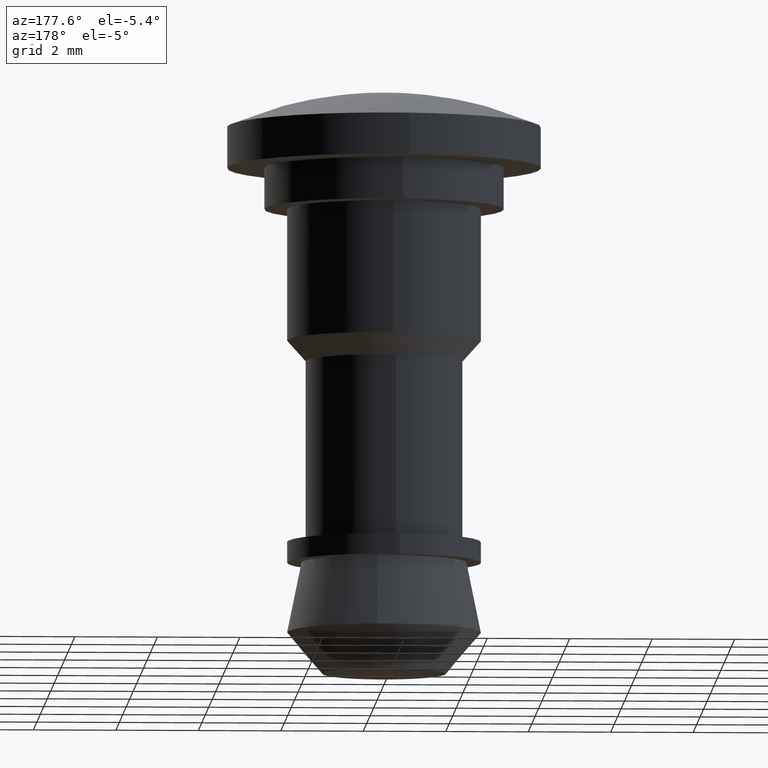
[diagram: clean part render]
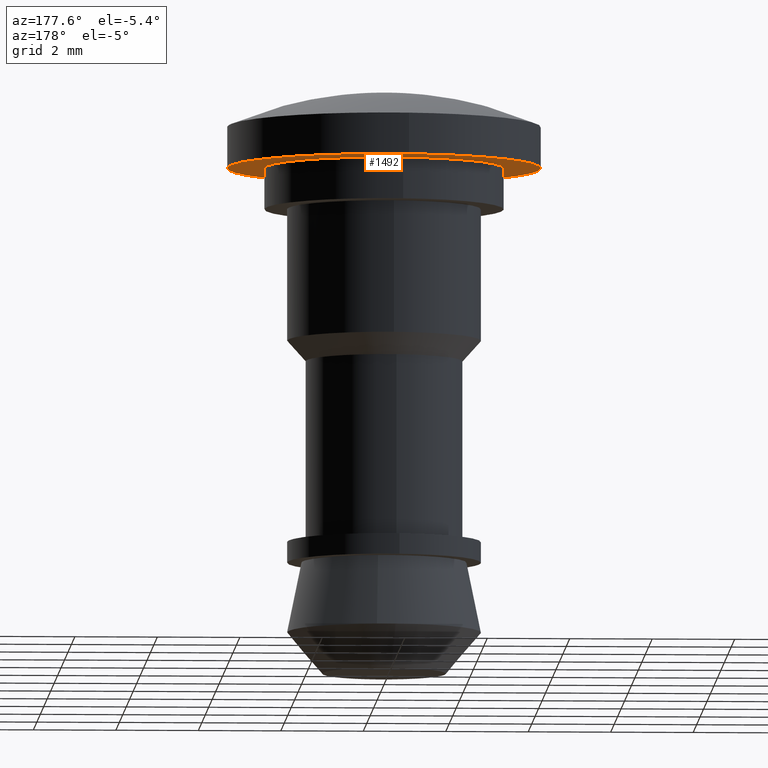
[diagram: same view with one face highlighted and labeled with its STEP entity id]
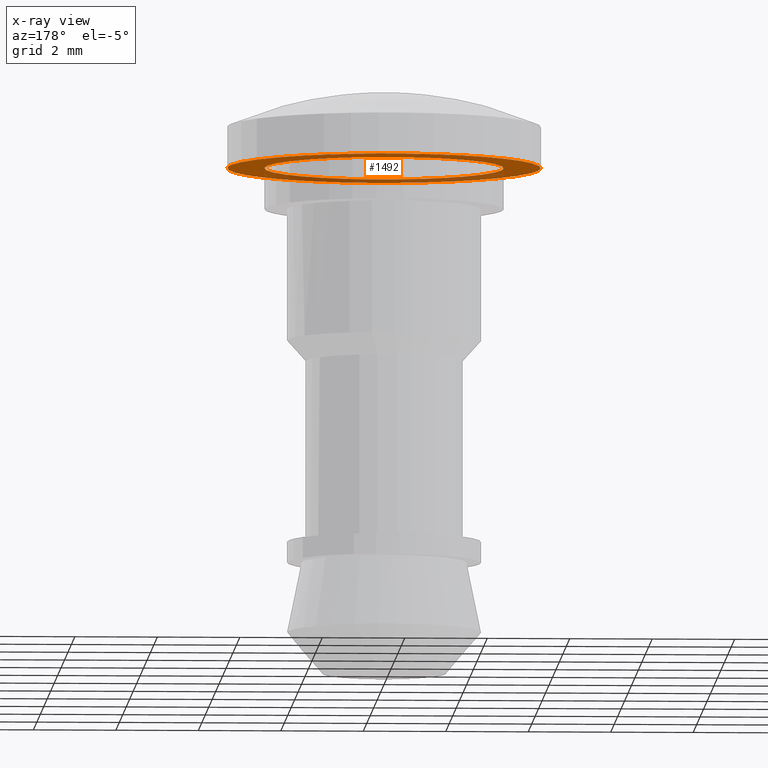
[diagram: x-ray of the same camera — body ghosted, the highlighted face saturated]
A machine part, auxiliary view. The second image highlights one B-rep face of the part: STEP entity #1492.
The next image is the same camera in x-ray: the body ghosted, the highlighted face saturated — about 33% of this face is hidden behind the body in this view.
In plain terms, the highlighted face is a freeform B-spline surface patch.
Its self-contained STEP definition (entity closure, byte-faithful):
#100=CARTESIAN_POINT('',(0.231983949135835,-3.792912264651410,1.0));
#101=VERTEX_POINT('',#100);
#107=CARTESIAN_POINT('',(3.800000000000000,0.0,1.0));
#108=VERTEX_POINT('',#107);
#109=CARTESIAN_POINT('',(3.800000000000000,0.0,1.0));
#110=CARTESIAN_POINT('',(3.799999999999999,-3.574684000537785,1.0));
#111=CARTESIAN_POINT('',(0.231983949135835,-3.792912264651410,1.0));
#119=(BOUNDED_CURVE()B_SPLINE_CURVE(2,(#109,#110,#111),.UNSPECIFIED.,.F.,.U.)B_SPLINE_CURVE_WITH_KNOTS((3,3),(0.500000000000000,0.739333007833646),.UNSPECIFIED.)CURVE()GEOMETRIC_REPRESENTATION_ITEM()RATIONAL_B_SPLINE_CURVE((1.0,0.719603939869192,0.976072139384866))REPRESENTATION_ITEM(''));
#120=EDGE_CURVE('',#108,#101,#119,.T.);
#122=CARTESIAN_POINT('',(-0.448527645857825,3.773436490905229,1.0));
#123=VERTEX_POINT('',#122);
#124=CARTESIAN_POINT('',(-0.448527645857825,3.773436490905229,1.0));
#125=CARTESIAN_POINT('',(-0.225050418829906,3.800000000000000,1.0));
#126=CARTESIAN_POINT('',(0.0,3.800000000000000,1.0));
#127=CARTESIAN_POINT('',(3.800000000000000,3.800000000000000,1.0));
#128=CARTESIAN_POINT('',(3.800000000000000,0.0,1.0));
#136=(BOUNDED_CURVE()B_SPLINE_CURVE(2,(#124,#125,#126,#127,#128),.UNSPECIFIED.,.F.,.U.)B_SPLINE_CURVE_WITH_KNOTS((3,2,3),(0.229562583058920,0.250000000000000,0.500000000000000),.UNSPECIFIED.)CURVE()GEOMETRIC_REPRESENTATION_ITEM()RATIONAL_B_SPLINE_CURVE((0.956026968897302,0.976056076671578,1.0,0.707106781186547,1.0))REPRESENTATION_ITEM(''));
#137=EDGE_CURVE('',#123,#108,#136,.T.);
#181=CARTESIAN_POINT('',(-3.800000000000000,0.0,1.0));
#182=VERTEX_POINT('',#181);
#183=CARTESIAN_POINT('',(-3.800000000000000,0.0,1.0));
#184=CARTESIAN_POINT('',(-3.800000000000001,3.375065401639243,1.0));
#185=CARTESIAN_POINT('',(-0.448527645857825,3.773436490905229,1.0));
#193=(BOUNDED_CURVE()B_SPLINE_CURVE(2,(#183,#184,#185),.UNSPECIFIED.,.F.,.U.)B_SPLINE_CURVE_WITH_KNOTS((3,3),(0.0,0.229562583058920),.UNSPECIFIED.)CURVE()GEOMETRIC_REPRESENTATION_ITEM()RATIONAL_B_SPLINE_CURVE((1.0,0.731050704514970,0.956026968897302))REPRESENTATION_ITEM(''));
#194=EDGE_CURVE('',#182,#123,#193,.T.);
#196=CARTESIAN_POINT('',(0.231983949135835,-3.792912264651410,1.0));
#197=CARTESIAN_POINT('',(0.116099998032996,-3.799999999999999,1.0));
#198=CARTESIAN_POINT('',(0.0,-3.800000000000000,1.0));
#199=CARTESIAN_POINT('',(-3.800000000000000,-3.800000000000000,1.0));
#200=CARTESIAN_POINT('',(-3.800000000000000,0.0,1.0));
#208=(BOUNDED_CURVE()B_SPLINE_CURVE(2,(#196,#197,#198,#199,#200),.UNSPECIFIED.,.F.,.U.)B_SPLINE_CURVE_WITH_KNOTS((3,2,3),(0.739333007833647,0.750000000000000,1.0),.UNSPECIFIED.)CURVE()GEOMETRIC_REPRESENTATION_ITEM()RATIONAL_B_SPLINE_CURVE((0.976072139384866,0.987502841317355,1.0,0.707106781186547,1.0))REPRESENTATION_ITEM(''));
#209=EDGE_CURVE('',#101,#182,#208,.T.);
#252=CARTESIAN_POINT('',(-0.342299040128431,2.879727655026963,0.999999999999999));
#253=VERTEX_POINT('',#252);
#254=CARTESIAN_POINT('',(2.900000000000000,0.0,1.0));
#255=VERTEX_POINT('',#254);
#256=CARTESIAN_POINT('',(-0.342299040128431,2.879727655026963,0.999999999999999));
#257=CARTESIAN_POINT('',(-0.171749704073148,2.900000000000000,1.0));
#258=CARTESIAN_POINT('',(0.0,2.900000000000000,1.0));
#259=CARTESIAN_POINT('',(2.900000000000000,2.900000000000000,1.0));
#260=CARTESIAN_POINT('',(2.900000000000000,0.0,1.0));
#268=(BOUNDED_CURVE()B_SPLINE_CURVE(2,(#256,#257,#258,#259,#260),.UNSPECIFIED.,.F.,.U.)B_SPLINE_CURVE_WITH_KNOTS((3,2,3),(0.229562501729670,0.250000000000000,0.500000000000000),.UNSPECIFIED.)CURVE()GEOMETRIC_REPRESENTATION_ITEM()RATIONAL_B_SPLINE_CURVE((0.956026809488538,0.976055981388435,1.0,0.707106781186548,1.0))REPRESENTATION_ITEM(''));
#269=EDGE_CURVE('',#253,#255,#268,.T.);
#271=CARTESIAN_POINT('',(0.177038406045388,-2.894591059679989,1.000000000000037));
#272=VERTEX_POINT('',#271);
#273=CARTESIAN_POINT('',(2.900000000000000,0.0,1.0));
#274=CARTESIAN_POINT('',(2.900000000000001,-2.728049821082012,1.0));
#275=CARTESIAN_POINT('',(0.177038406045388,-2.894591059679989,1.000000000000037));
#283=(BOUNDED_CURVE()B_SPLINE_CURVE(2,(#273,#274,#275),.UNSPECIFIED.,.F.,.U.)B_SPLINE_CURVE_WITH_KNOTS((3,3),(0.500000000000000,0.739333102838652),.UNSPECIFIED.)CURVE()GEOMETRIC_REPRESENTATION_ITEM()RATIONAL_B_SPLINE_CURVE((1.0,0.719603828563904,0.976072342998844))REPRESENTATION_ITEM(''));
#284=EDGE_CURVE('',#255,#272,#283,.T.);
#351=CARTESIAN_POINT('',(-2.900000000000000,0.0,1.0));
#352=VERTEX_POINT('',#351);
#353=CARTESIAN_POINT('',(-2.900000000000000,0.0,1.0));
#354=CARTESIAN_POINT('',(-2.900000000000000,2.575706558283911,1.0));
#355=CARTESIAN_POINT('',(-0.342299040128431,2.879727655026963,0.999999999999999));
#363=(BOUNDED_CURVE()B_SPLINE_CURVE(2,(#353,#354,#355),.UNSPECIFIED.,.F.,.U.)B_SPLINE_CURVE_WITH_KNOTS((3,3),(0.0,0.229562501729670),.UNSPECIFIED.)CURVE()GEOMETRIC_REPRESENTATION_ITEM()RATIONAL_B_SPLINE_CURVE((1.0,0.731050799798113,0.956026809488538))REPRESENTATION_ITEM(''));
#364=EDGE_CURVE('',#352,#253,#363,.T.);
#398=CARTESIAN_POINT('',(0.177038406045388,-2.894591059679989,1.000000000000037));
#399=CARTESIAN_POINT('',(0.088601830956482,-2.900000000000000,1.0));
#400=CARTESIAN_POINT('',(0.0,-2.900000000000000,1.0));
#401=CARTESIAN_POINT('',(-2.900000000000000,-2.900000000000000,1.0));
#402=CARTESIAN_POINT('',(-2.900000000000000,0.0,1.0));
#410=(BOUNDED_CURVE()B_SPLINE_CURVE(2,(#398,#399,#400,#401,#402),.UNSPECIFIED.,.F.,.U.)B_SPLINE_CURVE_WITH_KNOTS((3,2,3),(0.739333102838652,0.750000000000000,1.0),.UNSPECIFIED.)CURVE()GEOMETRIC_REPRESENTATION_ITEM()RATIONAL_B_SPLINE_CURVE((0.976072342998844,0.987502952622643,1.0,0.707106781186548,1.0))REPRESENTATION_ITEM(''));
#411=EDGE_CURVE('',#272,#352,#410,.T.);
#1475=CARTESIAN_POINT('',(4.179619985269725,-4.179527496647351,1.0));
#1476=CARTESIAN_POINT('',(-4.179620189117610,-4.179527496647351,1.0));
#1477=CARTESIAN_POINT('',(4.179619985269725,4.179550871204846,1.0));
#1478=CARTESIAN_POINT('',(-4.179620189117610,4.179550871204846,1.0));
#1479=B_SPLINE_SURFACE_WITH_KNOTS('',1,1,((#1475,#1477),(#1476,#1478)),.UNSPECIFIED.,.F.,.F.,.U.,(2,2),(2,2),(0.0,8.359240174387335),(0.0,8.359078367852197),.UNSPECIFIED.);
#1480=ORIENTED_EDGE('',*,*,#194,.T.);
#1481=ORIENTED_EDGE('',*,*,#137,.T.);
#1482=ORIENTED_EDGE('',*,*,#120,.T.);
#1483=ORIENTED_EDGE('',*,*,#209,.T.);
#1484=EDGE_LOOP('',(#1480,#1481,#1482,#1483));
#1485=FACE_OUTER_BOUND('',#1484,.T.);
#1486=ORIENTED_EDGE('',*,*,#284,.F.);
#1487=ORIENTED_EDGE('',*,*,#269,.F.);
#1488=ORIENTED_EDGE('',*,*,#364,.F.);
#1489=ORIENTED_EDGE('',*,*,#411,.F.);
#1490=EDGE_LOOP('',(#1486,#1487,#1488,#1489));
#1491=FACE_BOUND('',#1490,.T.);
#1492=ADVANCED_FACE('',(#1485,#1491),#1479,.T.);